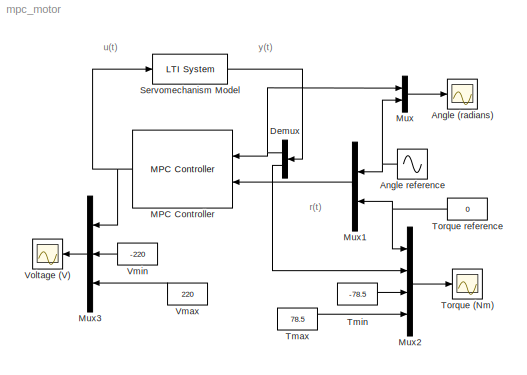
MODEL mpc_motor
KIND model
BLOCK [Scope] Angle (radians)
  DataFormat = Structure
  NumInputPorts = 1
  Ports = [1]
  TimeRange = 20
  YMax = 4
  YMin = -4
  ZoomMode = yonly
BLOCK [Sin] Angle reference
  Amplitude = pi
  Frequency = .4
  Ports = [0, 1]
  SampleTime = 0
  SineType = Time based
BLOCK [Demux] Demux
  Outputs = 2
  Ports = [1, 2]
BLOCK [Reference] MPC Controller  REF=mpclib/MPC Controller  (lib defined in mdl_ae329e0e0455)
  Ports = [2, 1]
  ShowPortLabels = on
  SourceBlock = mpclib/MPC Controller
  SourceType = MPC
  from_project = off
  md_from_ws = off
  md_inport = off
  md_preview = on
  md_signal_name = []
  mpcobj = ServoMPC
  n_mv = 0
  project_file = MPCtask.mat
  ref_from_ws = off
  ref_preview = on
  ref_signal_name = []
  x0 = []
BLOCK [Mux] Mux
  DisplayOption = bar
  Inputs = 2
  Ports = [2, 1]
BLOCK [Mux] Mux1
  DisplayOption = bar
  Inputs = 2
  Ports = [2, 1]
BLOCK [Mux] Mux2
  DisplayOption = bar
  Ports = [4, 1]
BLOCK [Mux] Mux3
  DisplayOption = bar
  Inputs = 3
  Ports = [3, 1]
BLOCK [Reference] Servomechanism Model  REF=cstblocks/LTI System
  IC = []
  Ports = [1, 1]
  ShowPortLabels = on
  SourceBlock = cstblocks/LTI System
  SourceType = LTI Block
  sys = sys
BLOCK [Constant] Tmax
  Value = 78.5
BLOCK [Constant] Tmin
  Value = -78.5
BLOCK [Scope] Torque (Nm)
  DataFormat = Structure
  NumInputPorts = 1
  Ports = [1]
  TimeRange = 20
  YMax = 100
  YMin = -100
  ZoomMode = yonly
BLOCK [Constant] Torque reference
  Value = 0
BLOCK [Constant] Vmax
  Value = 220
BLOCK [Constant] Vmin
  Value = -220
BLOCK [Scope] Voltage (V)
  DataFormat = Structure
  NumInputPorts = 1
  Ports = [1]
  TimeRange = 20
  YMax = 250
  YMin = -250
  ZoomMode = yonly
ANNOTATION (root): r(t)
ANNOTATION (root): u(t)
ANNOTATION (root): y(t)
NET Angle reference:1 -> Mux1:1, Mux:2
NET Demux:1 -> MPC Controller:1, Mux:1
LINE Demux:2 -> Mux2:2
NET MPC Controller:1 -> Mux3:1, Servomechanism Model:1
LINE Mux1:1 -> MPC Controller:2
LINE Mux2:1 -> Torque (Nm):1
LINE Mux3:1 -> Voltage (V):1
LINE Mux:1 -> Angle (radians):1
LINE Servomechanism Model:1 -> Demux:1
LINE Tmax:1 -> Mux2:4
LINE Tmin:1 -> Mux2:3
NET Torque reference:1 -> Mux1:2, Mux2:1
LINE Vmax:1 -> Mux3:3
LINE Vmin:1 -> Mux3:2
note: NET lines group one-source signal fan-out (src -> all destinations, sorted); 1:1 wires keep LINE
